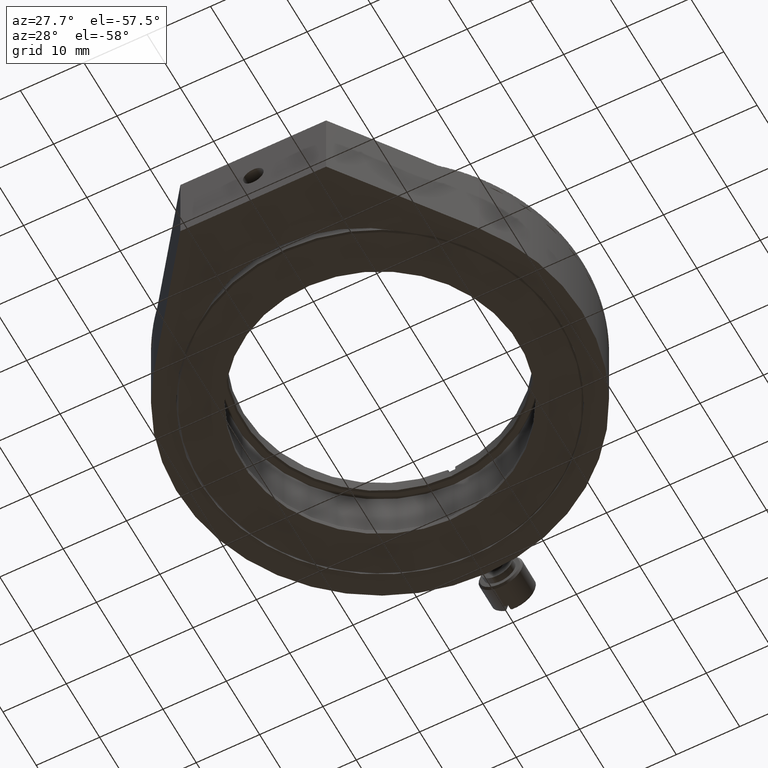
[diagram: clean part render]
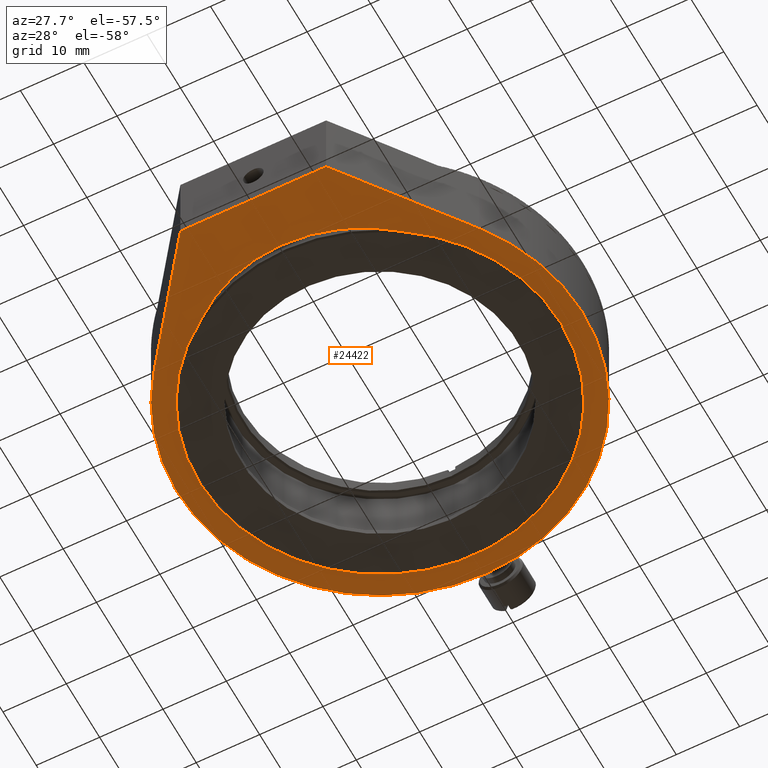
[diagram: same view with one face highlighted and labeled with its STEP entity id]
A machine part, auxiliary view. The second image highlights one B-rep face of the part: STEP entity #24422.
In plain terms, the highlighted planar face has unit normal (0, 0, 1).
Its self-contained STEP definition (entity closure, byte-faithful):
#572 = ORIENTED_EDGE ( 'NONE', *, *, #39924, .F. ) ;
#2667 = CIRCLE ( 'NONE', #11884, 32.00000000000000000 ) ;
#2862 = VECTOR ( 'NONE', #22155, 1000.000000000000000 ) ;
#4108 = DIRECTION ( 'NONE',  ( 0.000000000000000000, 1.000000000000000000, 0.000000000000000000 ) ) ;
#4117 = VERTEX_POINT ( 'NONE', #27333 ) ;
#4150 = DIRECTION ( 'NONE',  ( 0.000000000000000000, 0.000000000000000000, 1.000000000000000000 ) ) ;
#4978 = ORIENTED_EDGE ( 'NONE', *, *, #30865, .F. ) ;
#4990 = ORIENTED_EDGE ( 'NONE', *, *, #41733, .F. ) ;
#5981 = CARTESIAN_POINT ( 'NONE',  ( -25.64868815334285301, 0.000000000000000000, 19.13491039990964637 ) ) ;
#6497 = DIRECTION ( 'NONE',  ( 0.5979659499971764491, 0.000000000000000000, 0.8015215047919639346 ) ) ;
#7177 = EDGE_CURVE ( 'NONE', #27568, #13268, #50099, .T. ) ;
#7376 = EDGE_LOOP ( 'NONE', ( #56939, #62640, #25204 ) ) ;
#7745 = LINE ( 'NONE', #27255, #2862 ) ;
#8127 = DIRECTION ( 'NONE',  ( 0.000000000000000000, 0.000000000000000000, 1.000000000000000000 ) ) ;
#8869 = DIRECTION ( 'NONE',  ( 1.000000000000000000, 0.000000000000000000, 0.000000000000000000 ) ) ;
#9806 = AXIS2_PLACEMENT_3D ( 'NONE', #43629, #53247, #33400 ) ;
#10450 = CARTESIAN_POINT ( 'NONE',  ( -15.82908714992749211, 0.000000000000000000, 23.70000000000000639 ) ) ;
#11884 = AXIS2_PLACEMENT_3D ( 'NONE', #60974, #41131, #8127 ) ;
#12760 = PLANE ( 'NONE',  #60120 ) ;
#13268 = VERTEX_POINT ( 'NONE', #10450 ) ;
#13458 = AXIS2_PLACEMENT_3D ( 'NONE', #58550, #48010, #4150 ) ;
#15768 = CARTESIAN_POINT ( 'NONE',  ( -25.64868815334285301, 0.000000000000000000, 19.13491039990964637 ) ) ;
#15808 = CARTESIAN_POINT ( 'NONE',  ( 0.000000000000000000, 0.000000000000000000, 0.000000000000000000 ) ) ;
#17829 = ORIENTED_EDGE ( 'NONE', *, *, #58403, .F. ) ;
#18505 = CARTESIAN_POINT ( 'NONE',  ( 0.000000000000000000, 0.000000000000000000, 0.000000000000000000 ) ) ;
#20438 = AXIS2_PLACEMENT_3D ( 'NONE', #15808, #43140, #62673 ) ;
#21306 = VERTEX_POINT ( 'NONE', #5981 ) ;
#21624 = AXIS2_PLACEMENT_3D ( 'NONE', #27079, #27377, #37021 ) ;
#22155 = DIRECTION ( 'NONE',  ( 0.5979659499971761161, -0.000000000000000000, -0.8015215047919641567 ) ) ;
#23285 = LINE ( 'NONE', #52736, #31771 ) ;
#24422 = ADVANCED_FACE ( 'NONE', ( #47967, #62375 ), #12760, .F. ) ;
#24709 = CIRCLE ( 'NONE', #13458, 32.00000000000000000 ) ;
#25204 = ORIENTED_EDGE ( 'NONE', *, *, #31030, .T. ) ;
#25765 = VERTEX_POINT ( 'NONE', #57572 ) ;
#27079 = CARTESIAN_POINT ( 'NONE',  ( 6.123233995736765296E-16, 0.000000000000000000, 5.000000000000000000 ) ) ;
#27255 = CARTESIAN_POINT ( 'NONE',  ( 25.64868815334286012, 0.000000000000000000, 19.13491039990963927 ) ) ;
#27333 = CARTESIAN_POINT ( 'NONE',  ( 0.000000000000000000, 0.000000000000000000, -32.00000000000000000 ) ) ;
#27377 = DIRECTION ( 'NONE',  ( 0.000000000000000000, 1.000000000000000000, 0.000000000000000000 ) ) ;
#27481 = DIRECTION ( 'NONE',  ( 0.000000000000000000, -0.000000000000000000, 1.000000000000000000 ) ) ;
#27568 = VERTEX_POINT ( 'NONE', #50201 ) ;
#30163 = CARTESIAN_POINT ( 'NONE',  ( 11.50000000000000533, 0.000000000000000000, 38.10000000000000142 ) ) ;
#30865 = EDGE_CURVE ( 'NONE', #57512, #4117, #2667, .T. ) ;
#31030 = EDGE_CURVE ( 'NONE', #25765, #27568, #36446, .T. ) ;
#31771 = VECTOR ( 'NONE', #8869, 1000.000000000000000 ) ;
#33400 = DIRECTION ( 'NONE',  ( 0.000000000000000000, 0.000000000000000000, 1.000000000000000000 ) ) ;
#36446 = CIRCLE ( 'NONE', #9806, 24.50000000000000000 ) ;
#37021 = DIRECTION ( 'NONE',  ( 0.000000000000000000, 0.000000000000000000, 1.000000000000000000 ) ) ;
#39924 = EDGE_CURVE ( 'NONE', #60611, #60846, #23285, .T. ) ;
#40142 = EDGE_CURVE ( 'NONE', #13268, #25765, #54279, .T. ) ;
#41131 = DIRECTION ( 'NONE',  ( 0.000000000000000000, 1.000000000000000000, 0.000000000000000000 ) ) ;
#41733 = EDGE_CURVE ( 'NONE', #4117, #21306, #24709, .T. ) ;
#43140 = DIRECTION ( 'NONE',  ( 0.000000000000000000, 1.000000000000000000, 0.000000000000000000 ) ) ;
#43629 = CARTESIAN_POINT ( 'NONE',  ( 6.123233995736765296E-16, 0.000000000000000000, 5.000000000000000000 ) ) ;
#46799 = EDGE_LOOP ( 'NONE', ( #4978, #17829, #572, #54272, #4990 ) ) ;
#47068 = EDGE_CURVE ( 'NONE', #21306, #60611, #54813, .T. ) ;
#47967 = FACE_BOUND ( 'NONE', #7376, .T. ) ;
#48010 = DIRECTION ( 'NONE',  ( 0.000000000000000000, 1.000000000000000000, 0.000000000000000000 ) ) ;
#50099 = CIRCLE ( 'NONE', #20438, 28.50000000000000000 ) ;
#50201 = CARTESIAN_POINT ( 'NONE',  ( 15.82908714992750276, 0.000000000000000000, 23.70000000000000284 ) ) ;
#52736 = CARTESIAN_POINT ( 'NONE',  ( -11.49999999999999467, 0.000000000000000000, 38.10000000000000142 ) ) ;
#53247 = DIRECTION ( 'NONE',  ( 0.000000000000000000, 1.000000000000000000, 0.000000000000000000 ) ) ;
#54272 = ORIENTED_EDGE ( 'NONE', *, *, #47068, .F. ) ;
#54279 = CIRCLE ( 'NONE', #21624, 24.50000000000000000 ) ;
#54813 = LINE ( 'NONE', #15768, #56533 ) ;
#56256 = CARTESIAN_POINT ( 'NONE',  ( -11.49999999999999467, 0.000000000000000000, 38.10000000000000142 ) ) ;
#56533 = VECTOR ( 'NONE', #6497, 1000.000000000000000 ) ;
#56939 = ORIENTED_EDGE ( 'NONE', *, *, #7177, .T. ) ;
#57512 = VERTEX_POINT ( 'NONE', #62425 ) ;
#57572 = CARTESIAN_POINT ( 'NONE',  ( 6.123233995736765296E-16, 0.000000000000000000, 29.50000000000000355 ) ) ;
#58403 = EDGE_CURVE ( 'NONE', #60846, #57512, #7745, .T. ) ;
#58550 = CARTESIAN_POINT ( 'NONE',  ( 0.000000000000000000, 0.000000000000000000, 0.000000000000000000 ) ) ;
#60120 = AXIS2_PLACEMENT_3D ( 'NONE', #18505, #4108, #27481 ) ;
#60611 = VERTEX_POINT ( 'NONE', #56256 ) ;
#60846 = VERTEX_POINT ( 'NONE', #30163 ) ;
#60974 = CARTESIAN_POINT ( 'NONE',  ( 0.000000000000000000, 0.000000000000000000, 0.000000000000000000 ) ) ;
#62375 = FACE_OUTER_BOUND ( 'NONE', #46799, .T. ) ;
#62425 = CARTESIAN_POINT ( 'NONE',  ( 25.64868815334286012, 0.000000000000000000, 19.13491039990963927 ) ) ;
#62640 = ORIENTED_EDGE ( 'NONE', *, *, #40142, .T. ) ;
#62673 = DIRECTION ( 'NONE',  ( 0.000000000000000000, 0.000000000000000000, 1.000000000000000000 ) ) ;